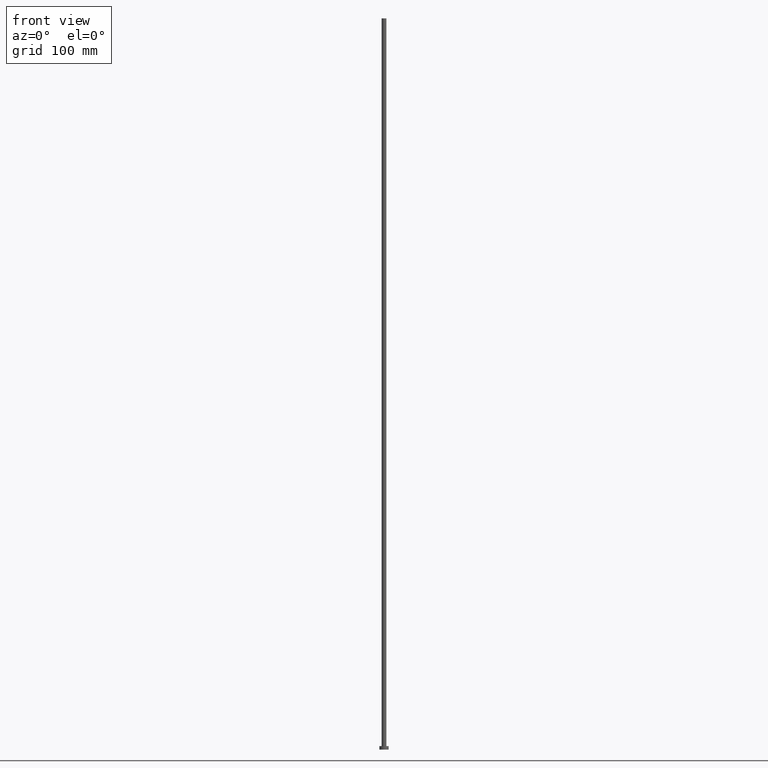
[diagram: clean part render]
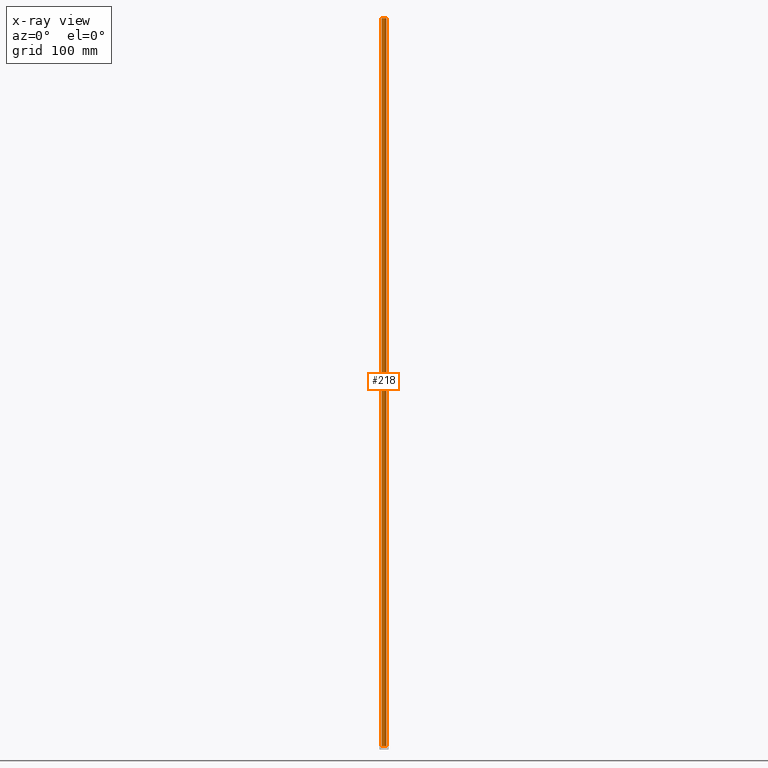
[diagram: x-ray — body ghosted, one internal face saturated and labeled with its STEP entity id]
A machine part, front view, then the same camera in x-ray: the body is ghosted and one INTERNAL B-rep face — a face not visible from any outside direction — is saturated and labeled: STEP entity #218.
In plain terms, the highlighted cylindrical surface (edge-blend (fillet) strip) has radius 2 mm, axis along (-0, -0, -1).
Its self-contained STEP definition (entity closure, byte-faithful):
#1 = ORIENTED_EDGE ( 'NONE', *, *, #9, .T. ) ;
#4 = DIRECTION ( 'NONE',  ( 1.000000000000000000, 0.000000000000000000, 0.000000000000000000 ) ) ;
#9 = EDGE_CURVE ( 'NONE', #97, #136, #170, .T. ) ;
#25 = ORIENTED_EDGE ( 'NONE', *, *, #111, .F. ) ;
#27 = CARTESIAN_POINT ( 'NONE',  ( 0.000000000000000000, 0.000000000000000000, 3.000000000000000000 ) ) ;
#35 = CARTESIAN_POINT ( 'NONE',  ( 2.000000000000000000, 2.449293598294706414E-16, 630.0000000000000000 ) ) ;
#51 = CARTESIAN_POINT ( 'NONE',  ( -2.000000000000000000, 0.000000000000000000, 630.0000000000000000 ) ) ;
#58 = VERTEX_POINT ( 'NONE', #179 ) ;
#70 = CIRCLE ( 'NONE', #172, 2.000000000000000000 ) ;
#74 = DIRECTION ( 'NONE',  ( 0.000000000000000000, 0.000000000000000000, 1.000000000000000000 ) ) ;
#78 = FACE_OUTER_BOUND ( 'NONE', #240, .T. ) ;
#79 = DIRECTION ( 'NONE',  ( -0.000000000000000000, -0.000000000000000000, -1.000000000000000000 ) ) ;
#83 = DIRECTION ( 'NONE',  ( 1.000000000000000000, 0.000000000000000000, 0.000000000000000000 ) ) ;
#87 = DIRECTION ( 'NONE',  ( 0.000000000000000000, 0.000000000000000000, 1.000000000000000000 ) ) ;
#90 = ORIENTED_EDGE ( 'NONE', *, *, #108, .F. ) ;
#91 = EDGE_CURVE ( 'NONE', #156, #97, #249, .T. ) ;
#97 = VERTEX_POINT ( 'NONE', #142 ) ;
#98 = VECTOR ( 'NONE', #101, 1000.000000000000000 ) ;
#101 = DIRECTION ( 'NONE',  ( -0.000000000000000000, -0.000000000000000000, -1.000000000000000000 ) ) ;
#105 = CARTESIAN_POINT ( 'NONE',  ( 2.000000000000000000, 2.449293598294706414E-16, 630.0000000000000000 ) ) ;
#108 = EDGE_CURVE ( 'NONE', #156, #58, #70, .T. ) ;
#111 = EDGE_CURVE ( 'NONE', #58, #136, #178, .T. ) ;
#124 = CARTESIAN_POINT ( 'NONE',  ( 0.000000000000000000, 0.000000000000000000, 630.0000000000000000 ) ) ;
#125 = CARTESIAN_POINT ( 'NONE',  ( 0.000000000000000000, 0.000000000000000000, 630.0000000000000000 ) ) ;
#136 = VERTEX_POINT ( 'NONE', #174 ) ;
#139 = DIRECTION ( 'NONE',  ( -0.000000000000000000, -0.000000000000000000, -1.000000000000000000 ) ) ;
#142 = CARTESIAN_POINT ( 'NONE',  ( 2.000000000000000000, 2.449293598294706414E-16, 3.000000000000000000 ) ) ;
#146 = AXIS2_PLACEMENT_3D ( 'NONE', #27, #74, #4 ) ;
#155 = DIRECTION ( 'NONE',  ( -1.000000000000000000, 0.000000000000000000, 0.000000000000000000 ) ) ;
#156 = VERTEX_POINT ( 'NONE', #35 ) ;
#170 = CIRCLE ( 'NONE', #146, 2.000000000000000000 ) ;
#172 = AXIS2_PLACEMENT_3D ( 'NONE', #124, #87, #83 ) ;
#174 = CARTESIAN_POINT ( 'NONE',  ( -2.000000000000000000, 0.000000000000000000, 3.000000000000000000 ) ) ;
#178 = LINE ( 'NONE', #51, #98 ) ;
#179 = CARTESIAN_POINT ( 'NONE',  ( -2.000000000000000000, 0.000000000000000000, 630.0000000000000000 ) ) ;
#203 = CYLINDRICAL_SURFACE ( 'NONE', #254, 2.000000000000000000 ) ;
#205 = VECTOR ( 'NONE', #139, 1000.000000000000000 ) ;
#218 = ADVANCED_FACE ( 'NONE', ( #78 ), #203, .T. ) ;
#220 = ORIENTED_EDGE ( 'NONE', *, *, #91, .T. ) ;
#240 = EDGE_LOOP ( 'NONE', ( #90, #220, #1, #25 ) ) ;
#249 = LINE ( 'NONE', #105, #205 ) ;
#254 = AXIS2_PLACEMENT_3D ( 'NONE', #125, #79, #155 ) ;